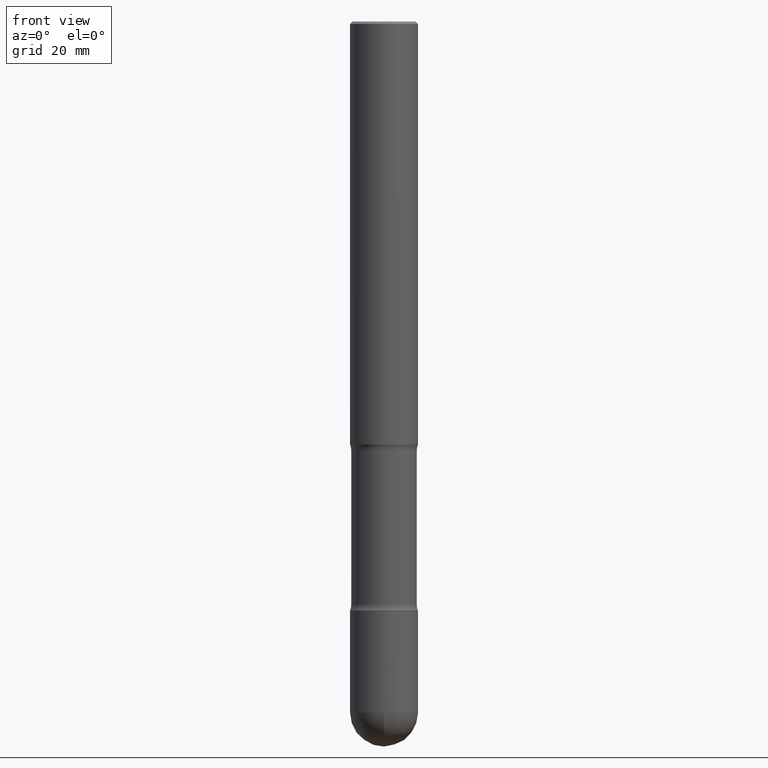
[diagram: clean part render]
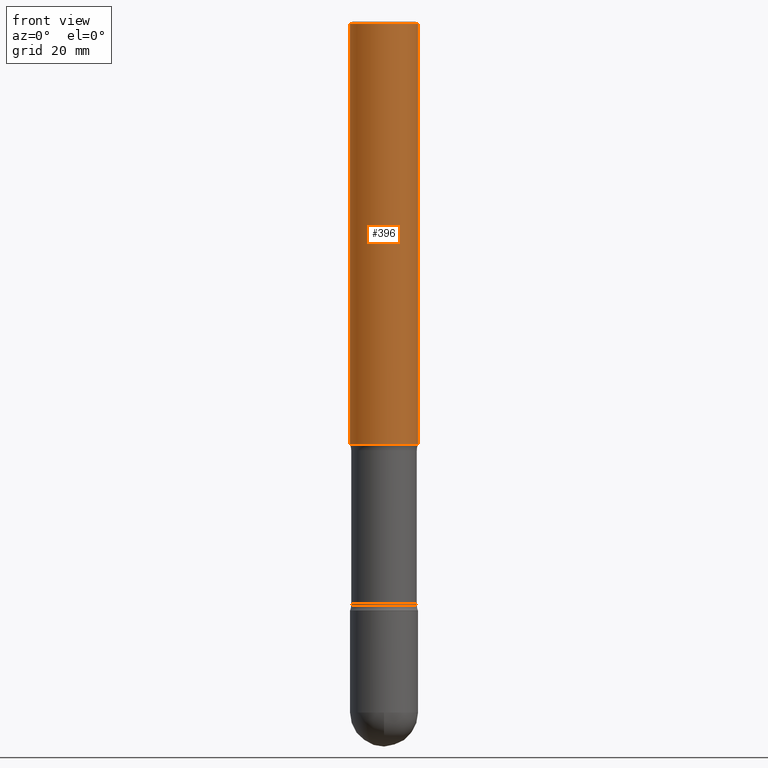
[diagram: same view with one face highlighted and labeled with its STEP entity id]
A machine part, front view. The second image highlights one B-rep face of the part: STEP entity #396.
In plain terms, the highlighted cylindrical surface (edge-blend (fillet) strip) has radius 7.1437 mm, axis along (0, -0, -1).
Its self-contained STEP definition (entity closure, byte-faithful):
#18 = VERTEX_POINT ( 'NONE', #245 ) ;
#37 = DIRECTION ( 'NONE',  ( 2.445468806185136597E-29, -3.491481338843145583E-15, -1.000000000000000000 ) ) ;
#67 = DIRECTION ( 'NONE',  ( 2.445468806185136877E-29, -3.491481338843145188E-15, -1.000000000000000000 ) ) ;
#76 = ORIENTED_EDGE ( 'NONE', *, *, #111, .F. ) ;
#96 = AXIS2_PLACEMENT_3D ( 'NONE', #505, #112, #286 ) ;
#97 = ORIENTED_EDGE ( 'NONE', *, *, #128, .F. ) ;
#111 = EDGE_CURVE ( 'NONE', #167, #18, #461, .T. ) ;
#112 = DIRECTION ( 'NONE',  ( 2.445468806185136597E-29, -3.491481338843145583E-15, -1.000000000000000000 ) ) ;
#117 = VECTOR ( 'NONE', #468, 39.37007874015748143 ) ;
#122 = DIRECTION ( 'NONE',  ( -1.000000000000000000, 6.982962677686268288E-15, 0.000000000000000000 ) ) ;
#125 = DIRECTION ( 'NONE',  ( 2.445468806185136597E-29, -3.491481338843145583E-15, -1.000000000000000000 ) ) ;
#128 = EDGE_CURVE ( 'NONE', #18, #133, #541, .T. ) ;
#133 = VERTEX_POINT ( 'NONE', #169 ) ;
#167 = VERTEX_POINT ( 'NONE', #432 ) ;
#169 = CARTESIAN_POINT ( 'NONE',  ( -0.2812500000000000555, -1.025622643285174920E-14, -3.500000000000000888 ) ) ;
#173 = LINE ( 'NONE', #292, #117 ) ;
#186 = EDGE_LOOP ( 'NONE', ( #76, #549, #255, #97 ) ) ;
#218 = EDGE_CURVE ( 'NONE', #299, #133, #173, .T. ) ;
#240 = CARTESIAN_POINT ( 'NONE',  ( 8.559140821647979210E-29, -1.222018468595101250E-14, -3.500000000000000888 ) ) ;
#245 = CARTESIAN_POINT ( 'NONE',  ( 0.2812500000000000000, -8.074522218237177205E-15, -3.500000000000000888 ) ) ;
#249 = AXIS2_PLACEMENT_3D ( 'NONE', #340, #125, #520 ) ;
#250 = FACE_OUTER_BOUND ( 'NONE', #186, .T. ) ;
#255 = ORIENTED_EDGE ( 'NONE', *, *, #218, .T. ) ;
#256 = VECTOR ( 'NONE', #67, 39.37007874015748143 ) ;
#286 = DIRECTION ( 'NONE',  ( -1.000000000000000000, 6.982962677686268288E-15, 0.000000000000000000 ) ) ;
#292 = CARTESIAN_POINT ( 'NONE',  ( -0.2812499999999998335, -1.505701327376107491E-14, -4.875000000000000888 ) ) ;
#299 = VERTEX_POINT ( 'NONE', #454 ) ;
#311 = AXIS2_PLACEMENT_3D ( 'NONE', #240, #37, #122 ) ;
#340 = CARTESIAN_POINT ( 'NONE',  ( 1.192166043015254315E-28, -1.702097152686033664E-14, -4.875000000000000888 ) ) ;
#345 = CIRCLE ( 'NONE', #96, 0.2812499999999996114 ) ;
#396 = ADVANCED_FACE ( 'NONE', ( #250 ), #527, .T. ) ;
#432 = CARTESIAN_POINT ( 'NONE',  ( 0.2812499999999996114, -1.999344688650104578E-15, -0.02000000000000033348 ) ) ;
#454 = CARTESIAN_POINT ( 'NONE',  ( -0.2812499999999996114, 1.894128626322396059E-15, -0.02000000000000033348 ) ) ;
#458 = CARTESIAN_POINT ( 'NONE',  ( 0.2812499999999998335, -1.895048658873357831E-14, -4.875000000000000888 ) ) ;
#461 = LINE ( 'NONE', #458, #256 ) ;
#468 = DIRECTION ( 'NONE',  ( 2.445468806185136877E-29, -3.491481338843145188E-15, -1.000000000000000000 ) ) ;
#505 = CARTESIAN_POINT ( 'NONE',  ( 4.890937612370354609E-31, -6.982962677686407473E-17, -0.02000000000000033348 ) ) ;
#520 = DIRECTION ( 'NONE',  ( -1.000000000000000000, 6.982962677686266711E-15, 0.000000000000000000 ) ) ;
#527 = CYLINDRICAL_SURFACE ( 'NONE', #249, 0.2812499999999998335 ) ;
#541 = CIRCLE ( 'NONE', #311, 0.2812500000000000555 ) ;
#549 = ORIENTED_EDGE ( 'NONE', *, *, #559, .T. ) ;
#559 = EDGE_CURVE ( 'NONE', #167, #299, #345, .T. ) ;